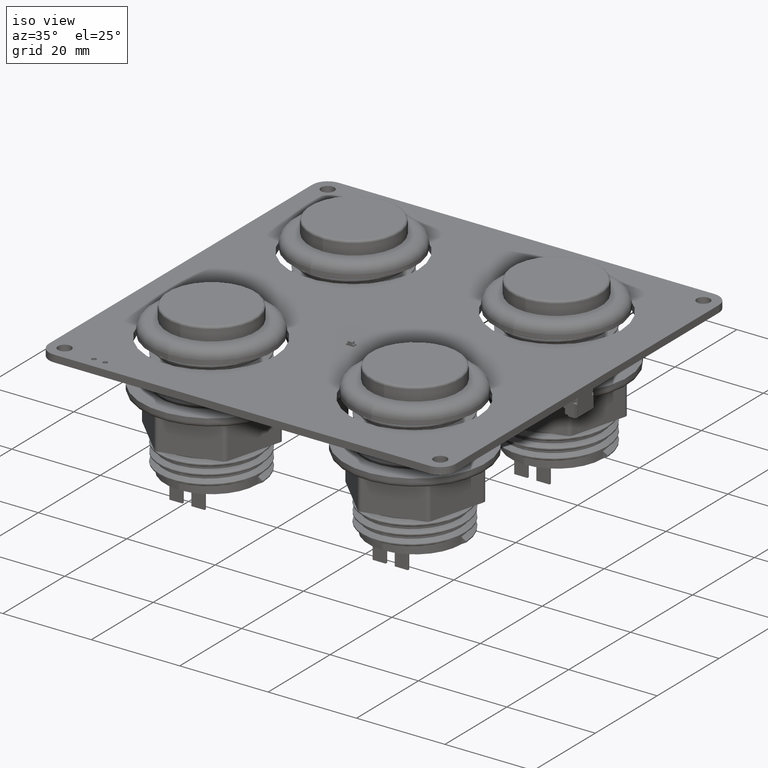
[diagram: clean part render]
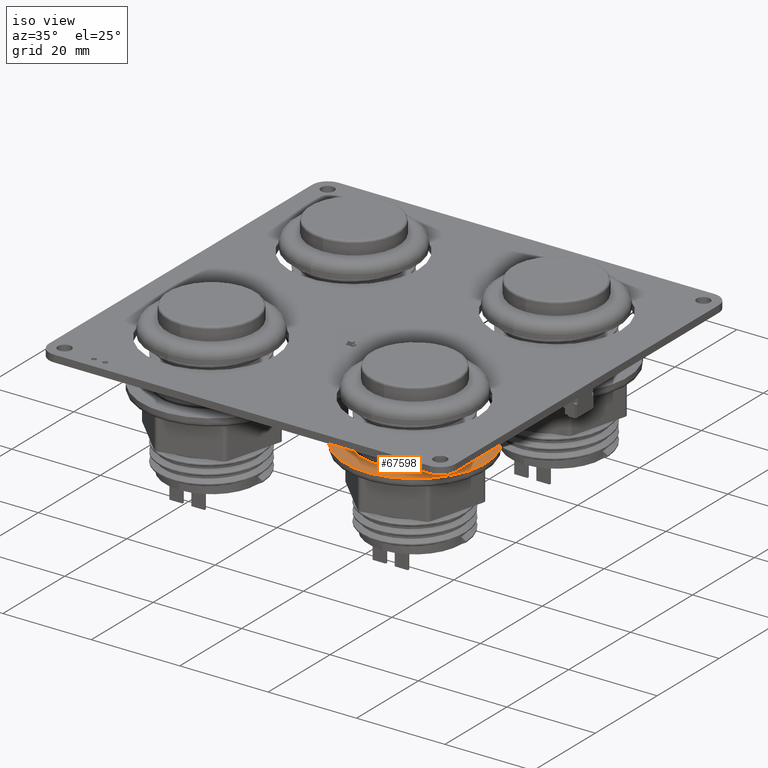
[diagram: same view with one face highlighted and labeled with its STEP entity id]
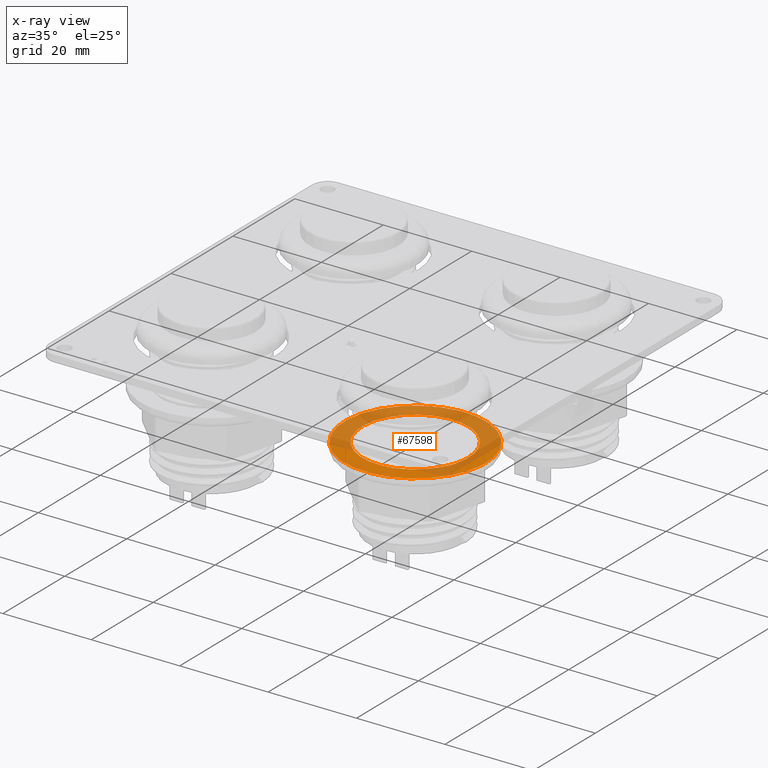
[diagram: x-ray of the same camera — body ghosted, the highlighted face saturated]
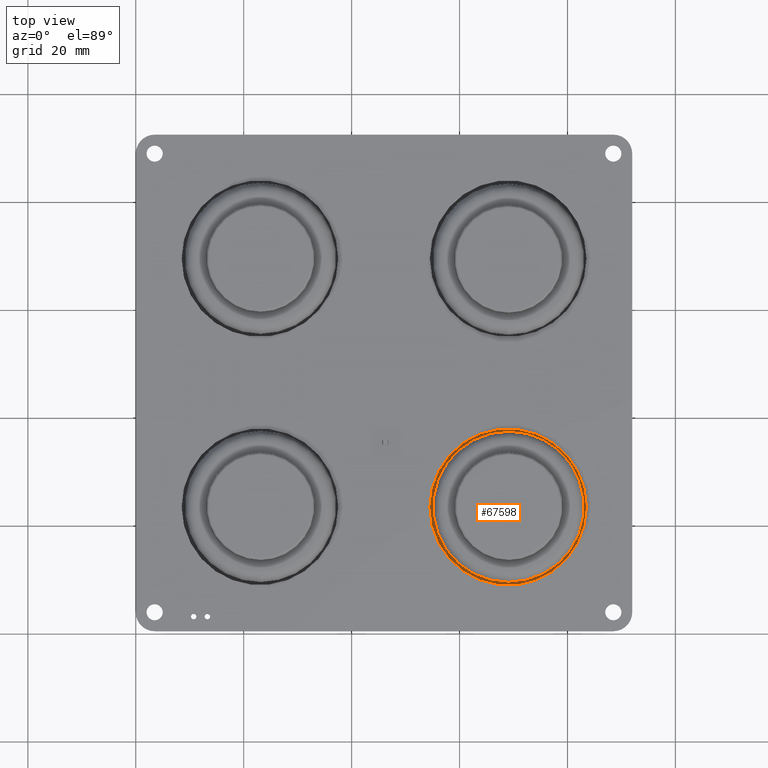
[diagram: same view with one face highlighted and labeled with its STEP entity id]
A machine part, iso view. The second image highlights one B-rep face of the part: STEP entity #67598.
The next image is the same camera in x-ray: the body ghosted, the highlighted face saturated — about 66% of this face is hidden behind the body in this view.
A second angle (top view) of the same face is appended — the face is thin or edge-on in the first view.
In plain terms, the highlighted planar face has unit normal (-0, -0, 1).
Its self-contained STEP definition (entity closure, byte-faithful):
#67529 = VERTEX_POINT('',#67530);
#67530 = CARTESIAN_POINT('',(0.,-2.,12.));
#67548 = VERTEX_POINT('',#67549);
#67549 = CARTESIAN_POINT('',(1.469576158977E-15,-2.,-12.));
#67555 = EDGE_CURVE('',#67529,#67548,#67556,.T.);
#67556 = CIRCLE('',#67557,12.);
#67557 = AXIS2_PLACEMENT_3D('',#67558,#67559,#67560);
#67558 = CARTESIAN_POINT('',(0.,-2.,0.));
#67559 = DIRECTION('',(0.,-1.,0.));
#67560 = DIRECTION('',(0.,0.,-1.));
#67570 = EDGE_CURVE('',#67571,#67573,#67575,.T.);
#67571 = VERTEX_POINT('',#67572);
#67572 = CARTESIAN_POINT('',(1.959434878636E-15,-2.,-16.));
#67573 = VERTEX_POINT('',#67574);
#67574 = CARTESIAN_POINT('',(0.,-2.,16.));
#67575 = CIRCLE('',#67576,16.);
#67576 = AXIS2_PLACEMENT_3D('',#67577,#67578,#67579);
#67577 = CARTESIAN_POINT('',(0.,-2.,0.));
#67578 = DIRECTION('',(0.,-1.,0.));
#67579 = DIRECTION('',(0.,0.,-1.));
#67598 = ADVANCED_FACE('',(#67599,#67609),#67619,.T.);
#67599 = FACE_BOUND('',#67600,.T.);
#67600 = EDGE_LOOP('',(#67601,#67608));
#67601 = ORIENTED_EDGE('',*,*,#67602,.T.);
#67602 = EDGE_CURVE('',#67573,#67571,#67603,.T.);
#67603 = CIRCLE('',#67604,16.);
#67604 = AXIS2_PLACEMENT_3D('',#67605,#67606,#67607);
#67605 = CARTESIAN_POINT('',(0.,-2.,0.));
#67606 = DIRECTION('',(0.,-1.,0.));
#67607 = DIRECTION('',(0.,0.,-1.));
#67608 = ORIENTED_EDGE('',*,*,#67570,.T.);
#67609 = FACE_BOUND('',#67610,.T.);
#67610 = EDGE_LOOP('',(#67611,#67612));
#67611 = ORIENTED_EDGE('',*,*,#67555,.F.);
#67612 = ORIENTED_EDGE('',*,*,#67613,.F.);
#67613 = EDGE_CURVE('',#67548,#67529,#67614,.T.);
#67614 = CIRCLE('',#67615,12.);
#67615 = AXIS2_PLACEMENT_3D('',#67616,#67617,#67618);
#67616 = CARTESIAN_POINT('',(0.,-2.,0.));
#67617 = DIRECTION('',(0.,-1.,0.));
#67618 = DIRECTION('',(0.,0.,-1.));
#67619 = PLANE('',#67620);
#67620 = AXIS2_PLACEMENT_3D('',#67621,#67622,#67623);
#67621 = CARTESIAN_POINT('',(0.,-2.,0.));
#67622 = DIRECTION('',(0.,-1.,0.));
#67623 = DIRECTION('',(0.,-0.,-1.));